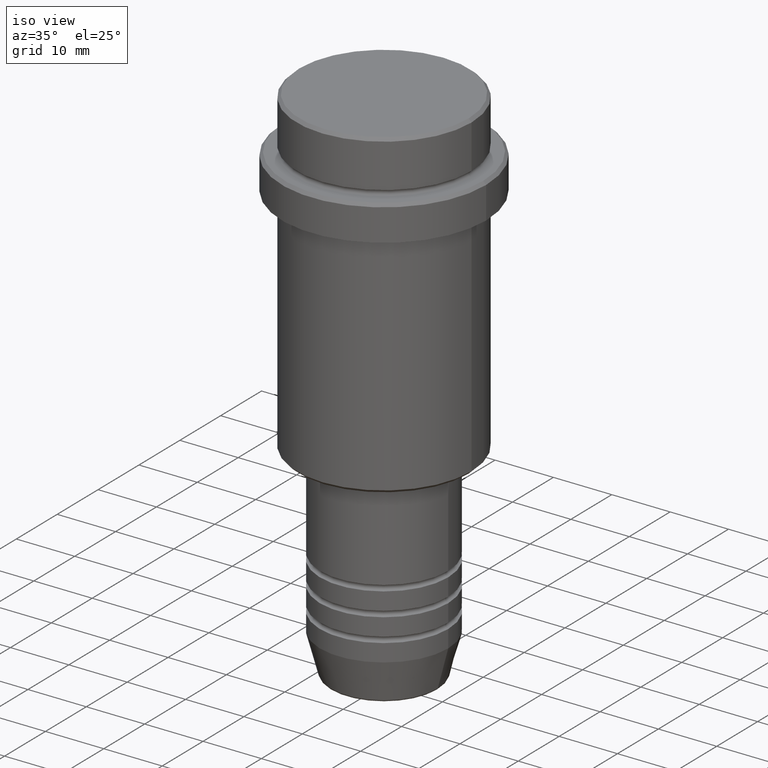
[diagram: clean part render]
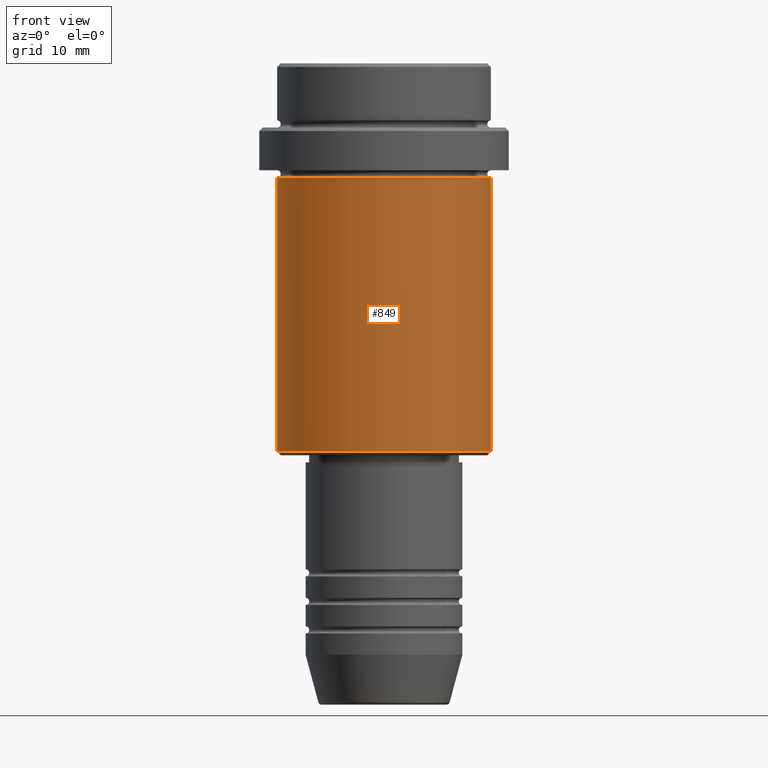
[diagram: tour spotlight — one face highlighted and labeled with its STEP entity id]
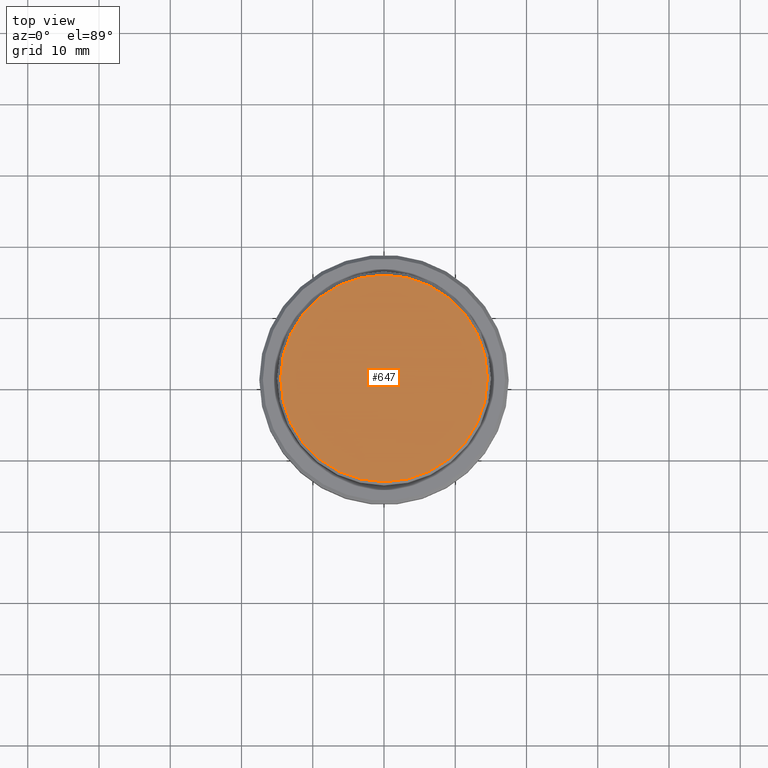
[diagram: tour spotlight — one face highlighted and labeled with its STEP entity id]
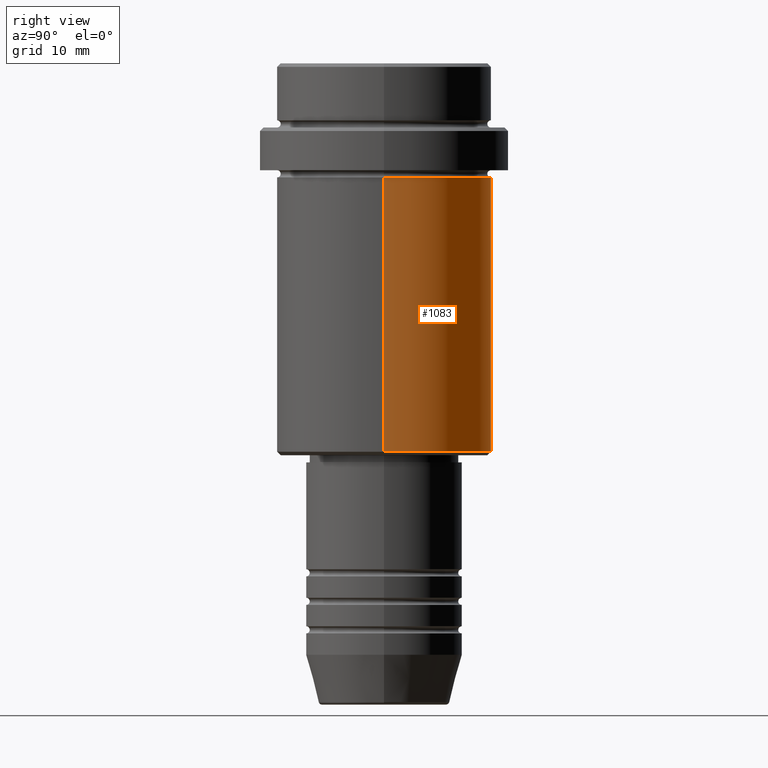
[diagram: tour spotlight — one face highlighted and labeled with its STEP entity id]
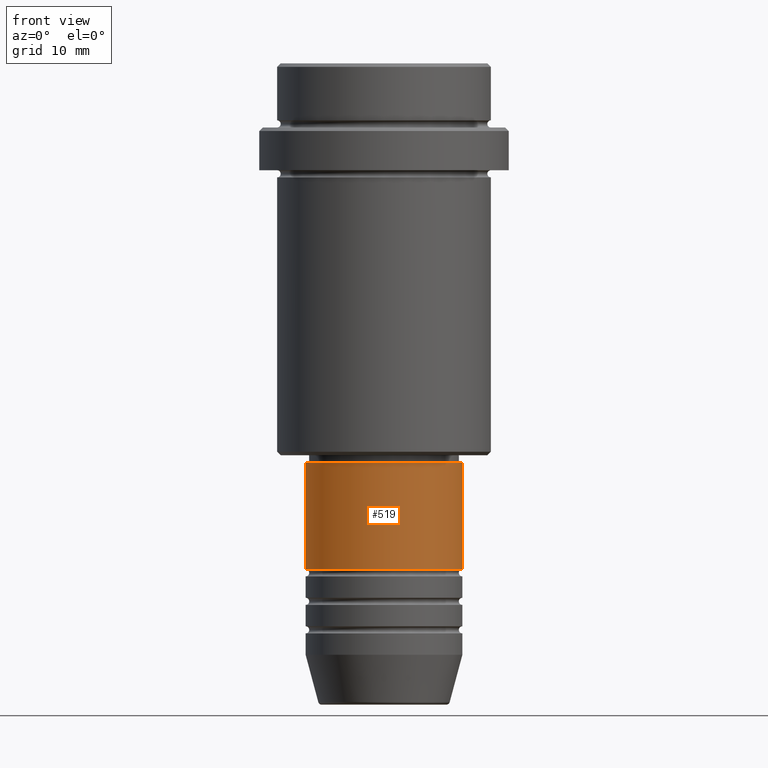
[diagram: tour spotlight — one face highlighted and labeled with its STEP entity id]
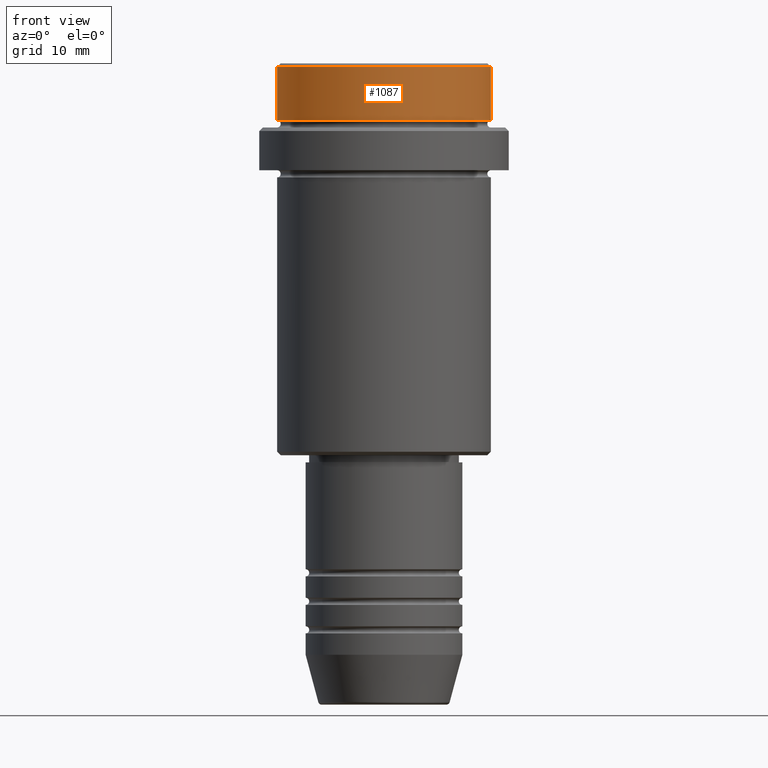
[diagram: tour spotlight — one face highlighted and labeled with its STEP entity id]
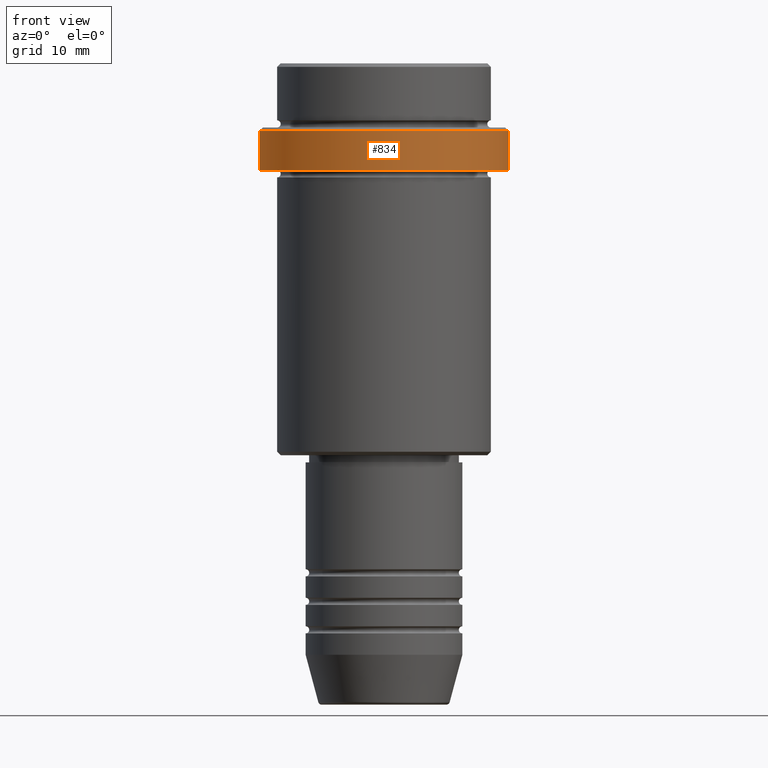
[diagram: tour spotlight — one face highlighted and labeled with its STEP entity id]
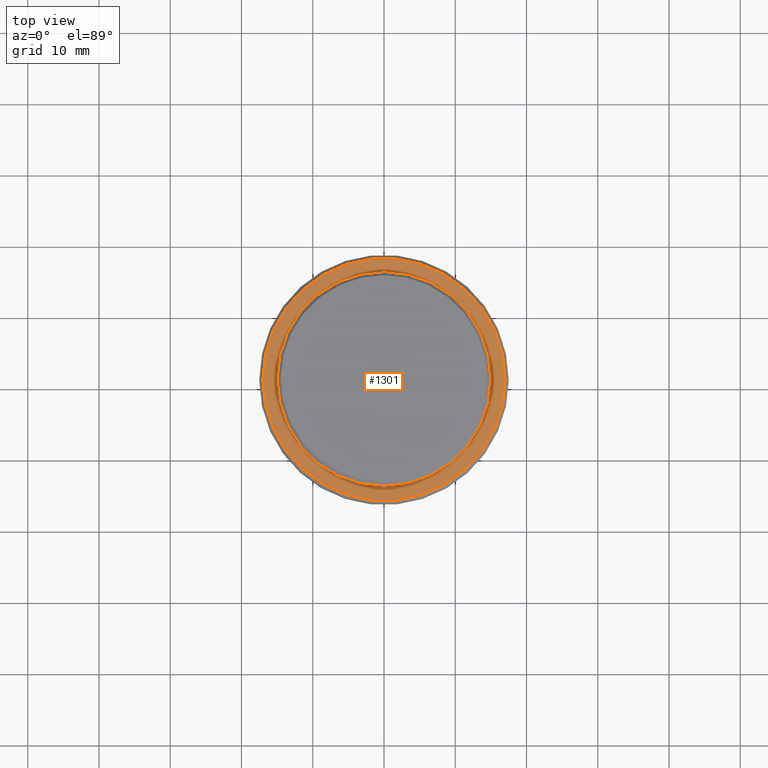
[diagram: tour spotlight — one face highlighted and labeled with its STEP entity id]
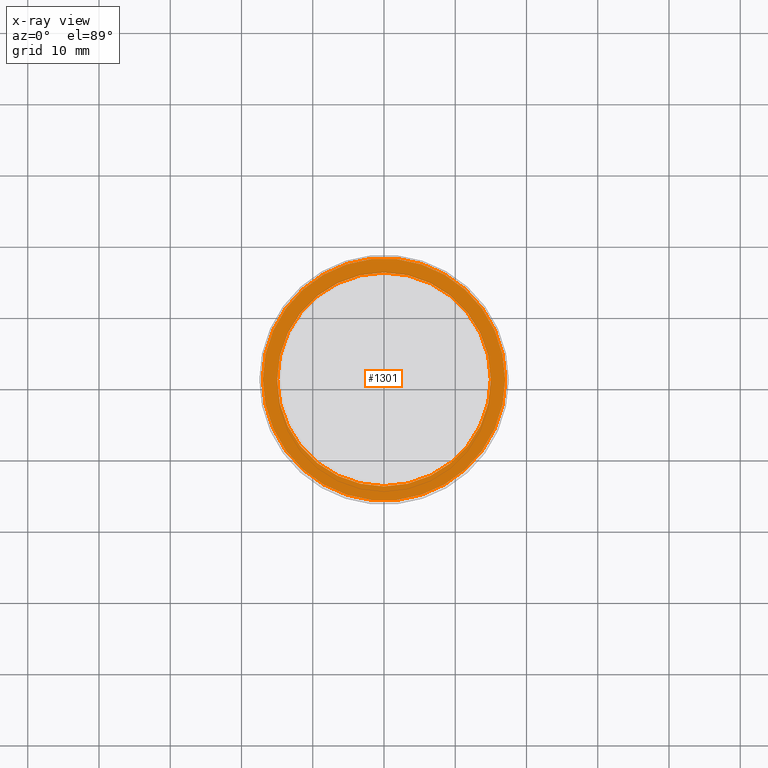
[diagram: x-ray of the same camera — body ghosted, this tour face saturated]
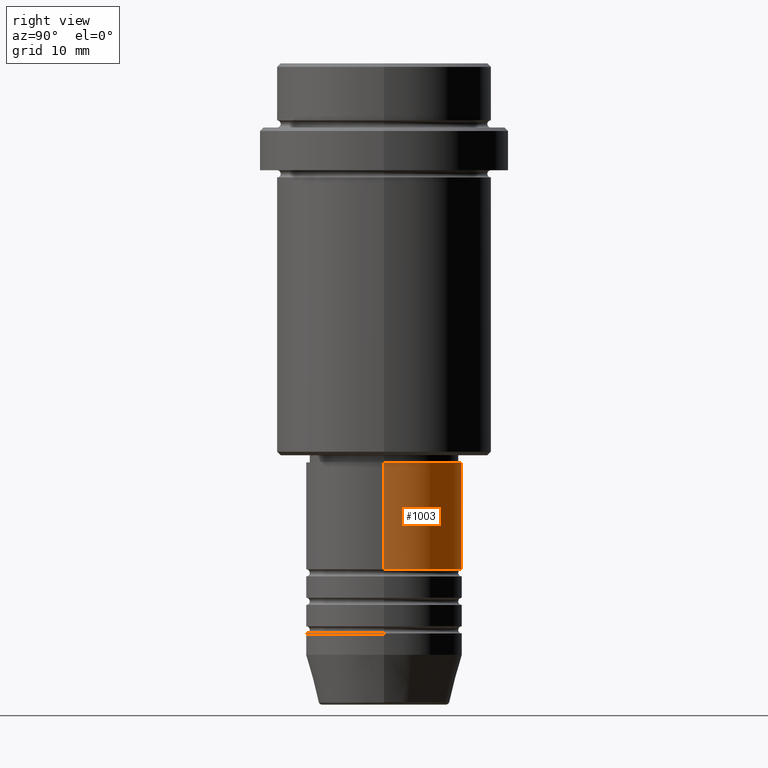
[diagram: tour spotlight — one face highlighted and labeled with its STEP entity id]
A machine part: a face-by-face anatomy tour. The part has 52 B-rep faces; the first image is the clean iso view, then the 8 largest visible faces are spotlighted one at a time (largest first), each with its STEP entity span.

Face 1 — front view, entity #849. In plain terms, the highlighted cylindrical surface (partial cylindrical patch) has radius 15 mm, axis along (-0, -0, 1).
Definition (entity closure, byte-faithful):
#38 = CARTESIAN_POINT ( 'NONE',  ( 0.000000000000000000, 0.000000000000000000, -54.49999999999998579 ) ) ;
#54 = CARTESIAN_POINT ( 'NONE',  ( -15.00000000000000000, 1.836970198721029589E-15, 0.000000000000000000 ) ) ;
#81 = EDGE_CURVE ( 'NONE', #595, #271, #911, .T. ) ;
#129 = DIRECTION ( 'NONE',  ( -1.000000000000000000, 0.000000000000000000, 0.000000000000000000 ) ) ;
#157 = EDGE_LOOP ( 'NONE', ( #703, #722, #1155, #1079 ) ) ;
#271 = VERTEX_POINT ( 'NONE', #795 ) ;
#288 = EDGE_CURVE ( 'NONE', #782, #271, #1348, .T. ) ;
#316 = AXIS2_PLACEMENT_3D ( 'NONE', #1404, #1023, #1334 ) ;
#324 = EDGE_CURVE ( 'NONE', #872, #595, #339, .T. ) ;
#339 = CIRCLE ( 'NONE', #853, 15.00000000000000000 ) ;
#464 = CARTESIAN_POINT ( 'NONE',  ( 0.000000000000000000, 0.000000000000000000, 0.000000000000000000 ) ) ;
#583 = VECTOR ( 'NONE', #1159, 1000.000000000000000 ) ;
#588 = CARTESIAN_POINT ( 'NONE',  ( 15.00000000000000000, 0.000000000000000000, 0.000000000000000000 ) ) ;
#595 = VERTEX_POINT ( 'NONE', #980 ) ;
#676 = CYLINDRICAL_SURFACE ( 'NONE', #695, 15.00000000000000000 ) ;
#695 = AXIS2_PLACEMENT_3D ( 'NONE', #464, #904, #1343 ) ;
#703 = ORIENTED_EDGE ( 'NONE', *, *, #946, .F. ) ;
#707 = CARTESIAN_POINT ( 'NONE',  ( -15.00000000000000000, 1.836970198721029589E-15, -54.49999999999998579 ) ) ;
#722 = ORIENTED_EDGE ( 'NONE', *, *, #324, .T. ) ;
#782 = VERTEX_POINT ( 'NONE', #1025 ) ;
#795 = CARTESIAN_POINT ( 'NONE',  ( 15.00000000000000178, 0.000000000000000000, -16.00000000000000000 ) ) ;
#809 = DIRECTION ( 'NONE',  ( -0.000000000000000000, -0.000000000000000000, 1.000000000000000000 ) ) ;
#814 = VECTOR ( 'NONE', #809, 1000.000000000000000 ) ;
#826 = FACE_OUTER_BOUND ( 'NONE', #157, .T. ) ;
#849 = ADVANCED_FACE ( 'NONE', ( #826 ), #676, .T. ) ;
#853 = AXIS2_PLACEMENT_3D ( 'NONE', #38, #906, #129 ) ;
#872 = VERTEX_POINT ( 'NONE', #707 ) ;
#904 = DIRECTION ( 'NONE',  ( -0.000000000000000000, -0.000000000000000000, 1.000000000000000000 ) ) ;
#906 = DIRECTION ( 'NONE',  ( -0.000000000000000000, -0.000000000000000000, 1.000000000000000000 ) ) ;
#911 = LINE ( 'NONE', #588, #814 ) ;
#946 = EDGE_CURVE ( 'NONE', #872, #782, #1058, .T. ) ;
#980 = CARTESIAN_POINT ( 'NONE',  ( 15.00000000000000000, 0.000000000000000000, -54.49999999999998579 ) ) ;
#1023 = DIRECTION ( 'NONE',  ( -0.000000000000000000, -0.000000000000000000, 1.000000000000000000 ) ) ;
#1025 = CARTESIAN_POINT ( 'NONE',  ( -15.00000000000000355, 1.836970198721029983E-15, -16.00000000000000000 ) ) ;
#1058 = LINE ( 'NONE', #54, #583 ) ;
#1079 = ORIENTED_EDGE ( 'NONE', *, *, #288, .F. ) ;
#1155 = ORIENTED_EDGE ( 'NONE', *, *, #81, .T. ) ;
#1159 = DIRECTION ( 'NONE',  ( -0.000000000000000000, -0.000000000000000000, 1.000000000000000000 ) ) ;
#1334 = DIRECTION ( 'NONE',  ( 1.000000000000000000, 0.000000000000000000, 0.000000000000000000 ) ) ;
#1343 = DIRECTION ( 'NONE',  ( 1.000000000000000000, 0.000000000000000000, 0.000000000000000000 ) ) ;
#1348 = CIRCLE ( 'NONE', #316, 15.00000000000000178 ) ;
#1404 = CARTESIAN_POINT ( 'NONE',  ( 0.000000000000000000, 0.000000000000000000, -16.00000000000000000 ) ) ;

Face 2 — top view, entity #647. In plain terms, the highlighted planar face has unit normal (0, -0, 1).
Definition (entity closure, byte-faithful):
#208 = DIRECTION ( 'NONE',  ( 1.000000000000000000, 0.000000000000000000, 0.000000000000000000 ) ) ;
#225 = VERTEX_POINT ( 'NONE', #1204 ) ;
#233 = DIRECTION ( 'NONE',  ( 1.000000000000000000, 0.000000000000000000, 0.000000000000000000 ) ) ;
#256 = EDGE_CURVE ( 'NONE', #225, #1036, #833, .T. ) ;
#334 = DIRECTION ( 'NONE',  ( -0.000000000000000000, -0.000000000000000000, 1.000000000000000000 ) ) ;
#457 = FACE_OUTER_BOUND ( 'NONE', #543, .T. ) ;
#530 = AXIS2_PLACEMENT_3D ( 'NONE', #1098, #334, #574 ) ;
#543 = EDGE_LOOP ( 'NONE', ( #674, #1091 ) ) ;
#554 = AXIS2_PLACEMENT_3D ( 'NONE', #873, #983, #208 ) ;
#574 = DIRECTION ( 'NONE',  ( 1.000000000000000000, 0.000000000000000000, 0.000000000000000000 ) ) ;
#647 = ADVANCED_FACE ( 'NONE', ( #457 ), #1325, .T. ) ;
#674 = ORIENTED_EDGE ( 'NONE', *, *, #725, .T. ) ;
#725 = EDGE_CURVE ( 'NONE', #1036, #225, #1099, .T. ) ;
#786 = CARTESIAN_POINT ( 'NONE',  ( -14.50000000000001066, 0.000000000000000000, 0.000000000000000000 ) ) ;
#833 = CIRCLE ( 'NONE', #530, 14.50000000000001066 ) ;
#873 = CARTESIAN_POINT ( 'NONE',  ( 0.000000000000000000, 0.000000000000000000, 0.000000000000000000 ) ) ;
#983 = DIRECTION ( 'NONE',  ( 0.000000000000000000, -0.000000000000000000, 1.000000000000000000 ) ) ;
#1036 = VERTEX_POINT ( 'NONE', #786 ) ;
#1091 = ORIENTED_EDGE ( 'NONE', *, *, #256, .T. ) ;
#1098 = CARTESIAN_POINT ( 'NONE',  ( 0.000000000000000000, 0.000000000000000000, 0.000000000000000000 ) ) ;
#1099 = CIRCLE ( 'NONE', #1141, 14.50000000000001066 ) ;
#1105 = CARTESIAN_POINT ( 'NONE',  ( 0.000000000000000000, 0.000000000000000000, 0.000000000000000000 ) ) ;
#1141 = AXIS2_PLACEMENT_3D ( 'NONE', #1105, #1221, #233 ) ;
#1204 = CARTESIAN_POINT ( 'NONE',  ( 14.50000000000001066, 1.806354028742346591E-15, 0.000000000000000000 ) ) ;
#1221 = DIRECTION ( 'NONE',  ( -0.000000000000000000, -0.000000000000000000, 1.000000000000000000 ) ) ;
#1325 = PLANE ( 'NONE',  #554 ) ;

Face 3 — right view, entity #1083. In plain terms, the highlighted cylindrical surface (partial cylindrical patch) has radius 15 mm, axis along (-0, -0, 1).
Definition (entity closure, byte-faithful):
#11 = CARTESIAN_POINT ( 'NONE',  ( 0.000000000000000000, 0.000000000000000000, 0.000000000000000000 ) ) ;
#54 = CARTESIAN_POINT ( 'NONE',  ( -15.00000000000000000, 1.836970198721029589E-15, 0.000000000000000000 ) ) ;
#80 = DIRECTION ( 'NONE',  ( -0.000000000000000000, -0.000000000000000000, 1.000000000000000000 ) ) ;
#81 = EDGE_CURVE ( 'NONE', #595, #271, #911, .T. ) ;
#217 = CARTESIAN_POINT ( 'NONE',  ( 0.000000000000000000, 0.000000000000000000, -16.00000000000000000 ) ) ;
#236 = EDGE_CURVE ( 'NONE', #271, #782, #926, .T. ) ;
#266 = EDGE_LOOP ( 'NONE', ( #476, #1169, #1009, #915 ) ) ;
#271 = VERTEX_POINT ( 'NONE', #795 ) ;
#476 = ORIENTED_EDGE ( 'NONE', *, *, #1397, .T. ) ;
#583 = VECTOR ( 'NONE', #1159, 1000.000000000000000 ) ;
#588 = CARTESIAN_POINT ( 'NONE',  ( 15.00000000000000000, 0.000000000000000000, 0.000000000000000000 ) ) ;
#595 = VERTEX_POINT ( 'NONE', #980 ) ;
#667 = CYLINDRICAL_SURFACE ( 'NONE', #671, 15.00000000000000000 ) ;
#671 = AXIS2_PLACEMENT_3D ( 'NONE', #11, #797, #1297 ) ;
#707 = CARTESIAN_POINT ( 'NONE',  ( -15.00000000000000000, 1.836970198721029589E-15, -54.49999999999998579 ) ) ;
#766 = CIRCLE ( 'NONE', #861, 15.00000000000000000 ) ;
#782 = VERTEX_POINT ( 'NONE', #1025 ) ;
#795 = CARTESIAN_POINT ( 'NONE',  ( 15.00000000000000178, 0.000000000000000000, -16.00000000000000000 ) ) ;
#797 = DIRECTION ( 'NONE',  ( -0.000000000000000000, -0.000000000000000000, 1.000000000000000000 ) ) ;
#809 = DIRECTION ( 'NONE',  ( -0.000000000000000000, -0.000000000000000000, 1.000000000000000000 ) ) ;
#814 = VECTOR ( 'NONE', #809, 1000.000000000000000 ) ;
#861 = AXIS2_PLACEMENT_3D ( 'NONE', #1071, #80, #1285 ) ;
#872 = VERTEX_POINT ( 'NONE', #707 ) ;
#911 = LINE ( 'NONE', #588, #814 ) ;
#915 = ORIENTED_EDGE ( 'NONE', *, *, #81, .F. ) ;
#926 = CIRCLE ( 'NONE', #947, 15.00000000000000178 ) ;
#946 = EDGE_CURVE ( 'NONE', #872, #782, #1058, .T. ) ;
#947 = AXIS2_PLACEMENT_3D ( 'NONE', #217, #1086, #1007 ) ;
#980 = CARTESIAN_POINT ( 'NONE',  ( 15.00000000000000000, 0.000000000000000000, -54.49999999999998579 ) ) ;
#1004 = FACE_OUTER_BOUND ( 'NONE', #266, .T. ) ;
#1007 = DIRECTION ( 'NONE',  ( 1.000000000000000000, 0.000000000000000000, 0.000000000000000000 ) ) ;
#1009 = ORIENTED_EDGE ( 'NONE', *, *, #236, .F. ) ;
#1025 = CARTESIAN_POINT ( 'NONE',  ( -15.00000000000000355, 1.836970198721029983E-15, -16.00000000000000000 ) ) ;
#1058 = LINE ( 'NONE', #54, #583 ) ;
#1071 = CARTESIAN_POINT ( 'NONE',  ( 0.000000000000000000, 0.000000000000000000, -54.49999999999998579 ) ) ;
#1083 = ADVANCED_FACE ( 'NONE', ( #1004 ), #667, .T. ) ;
#1086 = DIRECTION ( 'NONE',  ( -0.000000000000000000, -0.000000000000000000, 1.000000000000000000 ) ) ;
#1159 = DIRECTION ( 'NONE',  ( -0.000000000000000000, -0.000000000000000000, 1.000000000000000000 ) ) ;
#1169 = ORIENTED_EDGE ( 'NONE', *, *, #946, .T. ) ;
#1285 = DIRECTION ( 'NONE',  ( -1.000000000000000000, 0.000000000000000000, 0.000000000000000000 ) ) ;
#1297 = DIRECTION ( 'NONE',  ( 1.000000000000000000, 0.000000000000000000, 0.000000000000000000 ) ) ;
#1397 = EDGE_CURVE ( 'NONE', #595, #872, #766, .T. ) ;

Face 4 — front view, entity #519. In plain terms, the highlighted cylindrical surface (partial cylindrical patch) has radius 11 mm, axis along (-0, -0, 1).
Definition (entity closure, byte-faithful):
#48 = DIRECTION ( 'NONE',  ( 1.000000000000000000, 0.000000000000000000, 0.000000000000000000 ) ) ;
#261 = LINE ( 'NONE', #704, #650 ) ;
#313 = ORIENTED_EDGE ( 'NONE', *, *, #607, .F. ) ;
#319 = DIRECTION ( 'NONE',  ( -0.000000000000000000, -0.000000000000000000, 1.000000000000000000 ) ) ;
#341 = AXIS2_PLACEMENT_3D ( 'NONE', #976, #319, #1188 ) ;
#367 = AXIS2_PLACEMENT_3D ( 'NONE', #408, #1384, #48 ) ;
#375 = VERTEX_POINT ( 'NONE', #1229 ) ;
#404 = DIRECTION ( 'NONE',  ( -0.000000000000000000, -0.000000000000000000, 1.000000000000000000 ) ) ;
#408 = CARTESIAN_POINT ( 'NONE',  ( 0.000000000000000000, 0.000000000000000000, -70.99999999999990052 ) ) ;
#413 = CIRCLE ( 'NONE', #341, 10.99999999999999822 ) ;
#433 = EDGE_CURVE ( 'NONE', #375, #560, #261, .T. ) ;
#448 = ORIENTED_EDGE ( 'NONE', *, *, #1319, .F. ) ;
#519 = ADVANCED_FACE ( 'NONE', ( #1393 ), #1381, .T. ) ;
#560 = VERTEX_POINT ( 'NONE', #629 ) ;
#599 = DIRECTION ( 'NONE',  ( -0.000000000000000000, -0.000000000000000000, 1.000000000000000000 ) ) ;
#607 = EDGE_CURVE ( 'NONE', #1178, #560, #413, .T. ) ;
#629 = CARTESIAN_POINT ( 'NONE',  ( 10.99999999999999822, 0.000000000000000000, -56.00000000000000000 ) ) ;
#630 = AXIS2_PLACEMENT_3D ( 'NONE', #1298, #404, #750 ) ;
#650 = VECTOR ( 'NONE', #599, 1000.000000000000000 ) ;
#698 = VECTOR ( 'NONE', #752, 1000.000000000000000 ) ;
#701 = CARTESIAN_POINT ( 'NONE',  ( -10.99999999999999822, 1.347111479062088207E-15, -56.00000000000000000 ) ) ;
#704 = CARTESIAN_POINT ( 'NONE',  ( 11.00000000000000000, 0.000000000000000000, 0.000000000000000000 ) ) ;
#730 = ORIENTED_EDGE ( 'NONE', *, *, #433, .T. ) ;
#733 = EDGE_LOOP ( 'NONE', ( #448, #1072, #730, #313 ) ) ;
#750 = DIRECTION ( 'NONE',  ( 1.000000000000000000, 0.000000000000000000, 0.000000000000000000 ) ) ;
#752 = DIRECTION ( 'NONE',  ( -0.000000000000000000, -0.000000000000000000, 1.000000000000000000 ) ) ;
#844 = CARTESIAN_POINT ( 'NONE',  ( -11.00000000000000000, 1.347111479062088405E-15, 0.000000000000000000 ) ) ;
#913 = EDGE_CURVE ( 'NONE', #1032, #375, #1309, .T. ) ;
#970 = LINE ( 'NONE', #844, #698 ) ;
#976 = CARTESIAN_POINT ( 'NONE',  ( 0.000000000000000000, 0.000000000000000000, -56.00000000000000000 ) ) ;
#1032 = VERTEX_POINT ( 'NONE', #1231 ) ;
#1072 = ORIENTED_EDGE ( 'NONE', *, *, #913, .T. ) ;
#1178 = VERTEX_POINT ( 'NONE', #701 ) ;
#1188 = DIRECTION ( 'NONE',  ( 1.000000000000000000, 0.000000000000000000, 0.000000000000000000 ) ) ;
#1229 = CARTESIAN_POINT ( 'NONE',  ( 11.00000000000000000, 0.000000000000000000, -70.99999999999990052 ) ) ;
#1231 = CARTESIAN_POINT ( 'NONE',  ( -11.00000000000000000, 1.347111479062088405E-15, -70.99999999999990052 ) ) ;
#1298 = CARTESIAN_POINT ( 'NONE',  ( 0.000000000000000000, 0.000000000000000000, 0.000000000000000000 ) ) ;
#1309 = CIRCLE ( 'NONE', #367, 11.00000000000000000 ) ;
#1319 = EDGE_CURVE ( 'NONE', #1032, #1178, #970, .T. ) ;
#1381 = CYLINDRICAL_SURFACE ( 'NONE', #630, 11.00000000000000000 ) ;
#1384 = DIRECTION ( 'NONE',  ( -0.000000000000000000, -0.000000000000000000, 1.000000000000000000 ) ) ;
#1393 = FACE_OUTER_BOUND ( 'NONE', #733, .T. ) ;

Face 5 — front view, entity #1087. In plain terms, the highlighted cylindrical surface (partial cylindrical patch) has radius 15 mm, axis along (-0, -0, 1).
Definition (entity closure, byte-faithful):
#6 = EDGE_LOOP ( 'NONE', ( #491, #938, #9, #1345 ) ) ;
#9 = ORIENTED_EDGE ( 'NONE', *, *, #874, .T. ) ;
#33 = EDGE_CURVE ( 'NONE', #537, #933, #603, .T. ) ;
#36 = DIRECTION ( 'NONE',  ( -0.000000000000000000, -0.000000000000000000, 1.000000000000000000 ) ) ;
#43 = CARTESIAN_POINT ( 'NONE',  ( 15.00000000000000000, 0.000000000000000000, -0.4999999999999831246 ) ) ;
#47 = VERTEX_POINT ( 'NONE', #1401 ) ;
#140 = EDGE_CURVE ( 'NONE', #537, #47, #979, .T. ) ;
#141 = CARTESIAN_POINT ( 'NONE',  ( 15.00000000000000000, 0.000000000000000000, 0.000000000000000000 ) ) ;
#272 = VECTOR ( 'NONE', #659, 1000.000000000000000 ) ;
#299 = CARTESIAN_POINT ( 'NONE',  ( 15.00000000000000000, 0.000000000000000000, -7.999999999999998224 ) ) ;
#455 = DIRECTION ( 'NONE',  ( 1.000000000000000000, 0.000000000000000000, 0.000000000000000000 ) ) ;
#459 = CYLINDRICAL_SURFACE ( 'NONE', #1414, 15.00000000000000000 ) ;
#481 = DIRECTION ( 'NONE',  ( -0.000000000000000000, -0.000000000000000000, 1.000000000000000000 ) ) ;
#487 = CARTESIAN_POINT ( 'NONE',  ( 0.000000000000000000, 0.000000000000000000, -7.999999999999998224 ) ) ;
#491 = ORIENTED_EDGE ( 'NONE', *, *, #140, .F. ) ;
#526 = DIRECTION ( 'NONE',  ( 0.000000000000000000, 0.000000000000000000, -1.000000000000000000 ) ) ;
#537 = VERTEX_POINT ( 'NONE', #1367 ) ;
#587 = CARTESIAN_POINT ( 'NONE',  ( 0.000000000000000000, 0.000000000000000000, 0.000000000000000000 ) ) ;
#603 = CIRCLE ( 'NONE', #1208, 15.00000000000000000 ) ;
#659 = DIRECTION ( 'NONE',  ( -0.000000000000000000, -0.000000000000000000, 1.000000000000000000 ) ) ;
#740 = CARTESIAN_POINT ( 'NONE',  ( 0.000000000000000000, 0.000000000000000000, -0.4999999999999831246 ) ) ;
#806 = VERTEX_POINT ( 'NONE', #43 ) ;
#817 = LINE ( 'NONE', #141, #1142 ) ;
#856 = DIRECTION ( 'NONE',  ( 1.000000000000000000, 0.000000000000000000, 0.000000000000000000 ) ) ;
#874 = EDGE_CURVE ( 'NONE', #933, #806, #817, .T. ) ;
#931 = DIRECTION ( 'NONE',  ( 1.000000000000000000, 0.000000000000000000, 0.000000000000000000 ) ) ;
#933 = VERTEX_POINT ( 'NONE', #299 ) ;
#938 = ORIENTED_EDGE ( 'NONE', *, *, #33, .T. ) ;
#974 = FACE_OUTER_BOUND ( 'NONE', #6, .T. ) ;
#979 = LINE ( 'NONE', #992, #272 ) ;
#992 = CARTESIAN_POINT ( 'NONE',  ( -15.00000000000000000, 1.836970198721029589E-15, 0.000000000000000000 ) ) ;
#1087 = ADVANCED_FACE ( 'NONE', ( #974 ), #459, .T. ) ;
#1142 = VECTOR ( 'NONE', #36, 1000.000000000000000 ) ;
#1148 = CIRCLE ( 'NONE', #1273, 15.00000000000000000 ) ;
#1208 = AXIS2_PLACEMENT_3D ( 'NONE', #487, #481, #931 ) ;
#1226 = DIRECTION ( 'NONE',  ( -0.000000000000000000, -0.000000000000000000, 1.000000000000000000 ) ) ;
#1273 = AXIS2_PLACEMENT_3D ( 'NONE', #740, #526, #856 ) ;
#1345 = ORIENTED_EDGE ( 'NONE', *, *, #1409, .T. ) ;
#1367 = CARTESIAN_POINT ( 'NONE',  ( -15.00000000000000000, 1.836970198721029589E-15, -7.999999999999998224 ) ) ;
#1401 = CARTESIAN_POINT ( 'NONE',  ( -15.00000000000000000, 1.836970198721029589E-15, -0.4999999999999831246 ) ) ;
#1409 = EDGE_CURVE ( 'NONE', #806, #47, #1148, .T. ) ;
#1414 = AXIS2_PLACEMENT_3D ( 'NONE', #587, #1226, #455 ) ;

Face 6 — front view, entity #834. In plain terms, the highlighted cylindrical surface (partial cylindrical patch) has radius 17.5 mm, axis along (-0, -0, 1).
Definition (entity closure, byte-faithful):
#4 = ORIENTED_EDGE ( 'NONE', *, *, #126, .T. ) ;
#14 = CYLINDRICAL_SURFACE ( 'NONE', #275, 17.50000000000000000 ) ;
#27 = ORIENTED_EDGE ( 'NONE', *, *, #843, .T. ) ;
#63 = LINE ( 'NONE', #518, #441 ) ;
#98 = ORIENTED_EDGE ( 'NONE', *, *, #978, .T. ) ;
#126 = EDGE_CURVE ( 'NONE', #422, #1179, #1080, .T. ) ;
#131 = AXIS2_PLACEMENT_3D ( 'NONE', #1252, #147, #1336 ) ;
#147 = DIRECTION ( 'NONE',  ( -0.000000000000000000, -0.000000000000000000, 1.000000000000000000 ) ) ;
#193 = CARTESIAN_POINT ( 'NONE',  ( -17.50000000000000000, 2.143131898507868248E-15, 0.000000000000000000 ) ) ;
#240 = FACE_OUTER_BOUND ( 'NONE', #1277, .T. ) ;
#275 = AXIS2_PLACEMENT_3D ( 'NONE', #480, #497, #382 ) ;
#306 = CARTESIAN_POINT ( 'NONE',  ( -17.50000000000000000, 2.143131898507868248E-15, -15.00000000000000000 ) ) ;
#382 = DIRECTION ( 'NONE',  ( 1.000000000000000000, 0.000000000000000000, 0.000000000000000000 ) ) ;
#402 = ORIENTED_EDGE ( 'NONE', *, *, #525, .F. ) ;
#422 = VERTEX_POINT ( 'NONE', #1341 ) ;
#441 = VECTOR ( 'NONE', #744, 1000.000000000000000 ) ;
#475 = VERTEX_POINT ( 'NONE', #306 ) ;
#480 = CARTESIAN_POINT ( 'NONE',  ( 0.000000000000000000, 0.000000000000000000, 0.000000000000000000 ) ) ;
#497 = DIRECTION ( 'NONE',  ( -0.000000000000000000, -0.000000000000000000, 1.000000000000000000 ) ) ;
#518 = CARTESIAN_POINT ( 'NONE',  ( 17.50000000000000000, 0.000000000000000000, 0.000000000000000000 ) ) ;
#525 = EDGE_CURVE ( 'NONE', #475, #1179, #1181, .T. ) ;
#553 = CARTESIAN_POINT ( 'NONE',  ( 0.000000000000000000, 0.000000000000000000, -9.499999999999971578 ) ) ;
#594 = CARTESIAN_POINT ( 'NONE',  ( -17.50000000000000000, 2.143131898507868248E-15, -9.499999999999971578 ) ) ;
#613 = DIRECTION ( 'NONE',  ( 0.000000000000000000, 0.000000000000000000, -1.000000000000000000 ) ) ;
#646 = DIRECTION ( 'NONE',  ( -0.000000000000000000, -0.000000000000000000, 1.000000000000000000 ) ) ;
#744 = DIRECTION ( 'NONE',  ( -0.000000000000000000, -0.000000000000000000, 1.000000000000000000 ) ) ;
#834 = ADVANCED_FACE ( 'NONE', ( #240 ), #14, .T. ) ;
#843 = EDGE_CURVE ( 'NONE', #475, #1200, #1291, .T. ) ;
#887 = DIRECTION ( 'NONE',  ( 1.000000000000000000, 0.000000000000000000, 0.000000000000000000 ) ) ;
#952 = VECTOR ( 'NONE', #646, 1000.000000000000000 ) ;
#978 = EDGE_CURVE ( 'NONE', #1200, #422, #63, .T. ) ;
#1030 = CARTESIAN_POINT ( 'NONE',  ( 17.50000000000000000, 0.000000000000000000, -15.00000000000000000 ) ) ;
#1031 = AXIS2_PLACEMENT_3D ( 'NONE', #553, #613, #887 ) ;
#1080 = CIRCLE ( 'NONE', #1031, 17.50000000000000000 ) ;
#1179 = VERTEX_POINT ( 'NONE', #594 ) ;
#1181 = LINE ( 'NONE', #193, #952 ) ;
#1200 = VERTEX_POINT ( 'NONE', #1030 ) ;
#1252 = CARTESIAN_POINT ( 'NONE',  ( 0.000000000000000000, 0.000000000000000000, -15.00000000000000000 ) ) ;
#1277 = EDGE_LOOP ( 'NONE', ( #402, #27, #98, #4 ) ) ;
#1291 = CIRCLE ( 'NONE', #131, 17.50000000000000000 ) ;
#1336 = DIRECTION ( 'NONE',  ( 1.000000000000000000, 0.000000000000000000, 0.000000000000000000 ) ) ;
#1341 = CARTESIAN_POINT ( 'NONE',  ( 17.50000000000000000, 0.000000000000000000, -9.499999999999971578 ) ) ;

Face 7 — top view, entity #1301. An x-ray twin of the same camera follows (body ghosted, this face saturated) — the face is partly hidden behind the body. In plain terms, the highlighted planar face has unit normal (0, -0, 1).
Definition (entity closure, byte-faithful):
#42 = VERTEX_POINT ( 'NONE', #145 ) ;
#53 = ORIENTED_EDGE ( 'NONE', *, *, #1130, .T. ) ;
#73 = VERTEX_POINT ( 'NONE', #798 ) ;
#92 = PLANE ( 'NONE',  #110 ) ;
#97 = EDGE_LOOP ( 'NONE', ( #699, #53 ) ) ;
#106 = CIRCLE ( 'NONE', #1392, 17.00000000000002842 ) ;
#110 = AXIS2_PLACEMENT_3D ( 'NONE', #315, #1299, #1076 ) ;
#145 = CARTESIAN_POINT ( 'NONE',  ( -17.00000000000002842, 0.000000000000000000, -9.000000000000000000 ) ) ;
#177 = CIRCLE ( 'NONE', #967, 14.99999999999999289 ) ;
#205 = EDGE_CURVE ( 'NONE', #568, #634, #177, .T. ) ;
#210 = DIRECTION ( 'NONE',  ( 1.000000000000000000, 0.000000000000000000, 0.000000000000000000 ) ) ;
#253 = AXIS2_PLACEMENT_3D ( 'NONE', #485, #929, #1043 ) ;
#315 = CARTESIAN_POINT ( 'NONE',  ( 0.000000000000000000, 14.49999999999999467, -9.000000000000000000 ) ) ;
#374 = CARTESIAN_POINT ( 'NONE',  ( 0.000000000000000000, 0.000000000000000000, -9.000000000000000000 ) ) ;
#462 = EDGE_LOOP ( 'NONE', ( #1097, #754 ) ) ;
#485 = CARTESIAN_POINT ( 'NONE',  ( 0.000000000000000000, 0.000000000000000000, -9.000000000000000000 ) ) ;
#568 = VERTEX_POINT ( 'NONE', #642 ) ;
#631 = CIRCLE ( 'NONE', #253, 14.99999999999999289 ) ;
#634 = VERTEX_POINT ( 'NONE', #1403 ) ;
#642 = CARTESIAN_POINT ( 'NONE',  ( 14.99999999999999289, 0.000000000000000000, -9.000000000000000000 ) ) ;
#683 = DIRECTION ( 'NONE',  ( 1.000000000000000000, 0.000000000000000000, 0.000000000000000000 ) ) ;
#699 = ORIENTED_EDGE ( 'NONE', *, *, #751, .T. ) ;
#720 = AXIS2_PLACEMENT_3D ( 'NONE', #898, #999, #683 ) ;
#751 = EDGE_CURVE ( 'NONE', #42, #73, #106, .T. ) ;
#754 = ORIENTED_EDGE ( 'NONE', *, *, #886, .T. ) ;
#775 = DIRECTION ( 'NONE',  ( 0.000000000000000000, 0.000000000000000000, -1.000000000000000000 ) ) ;
#798 = CARTESIAN_POINT ( 'NONE',  ( 17.00000000000002842, 2.112515728529186039E-15, -9.000000000000000000 ) ) ;
#848 = FACE_OUTER_BOUND ( 'NONE', #97, .T. ) ;
#886 = EDGE_CURVE ( 'NONE', #634, #568, #631, .T. ) ;
#898 = CARTESIAN_POINT ( 'NONE',  ( 0.000000000000000000, 0.000000000000000000, -9.000000000000000000 ) ) ;
#929 = DIRECTION ( 'NONE',  ( 0.000000000000000000, 0.000000000000000000, -1.000000000000000000 ) ) ;
#967 = AXIS2_PLACEMENT_3D ( 'NONE', #1108, #775, #210 ) ;
#999 = DIRECTION ( 'NONE',  ( -0.000000000000000000, -0.000000000000000000, 1.000000000000000000 ) ) ;
#1043 = DIRECTION ( 'NONE',  ( 1.000000000000000000, 0.000000000000000000, 0.000000000000000000 ) ) ;
#1076 = DIRECTION ( 'NONE',  ( 1.000000000000000000, 0.000000000000000000, 0.000000000000000000 ) ) ;
#1097 = ORIENTED_EDGE ( 'NONE', *, *, #205, .T. ) ;
#1108 = CARTESIAN_POINT ( 'NONE',  ( 0.000000000000000000, 0.000000000000000000, -9.000000000000000000 ) ) ;
#1130 = EDGE_CURVE ( 'NONE', #73, #42, #1313, .T. ) ;
#1227 = DIRECTION ( 'NONE',  ( -0.000000000000000000, -0.000000000000000000, 1.000000000000000000 ) ) ;
#1294 = FACE_BOUND ( 'NONE', #462, .T. ) ;
#1299 = DIRECTION ( 'NONE',  ( 0.000000000000000000, -0.000000000000000000, 1.000000000000000000 ) ) ;
#1301 = ADVANCED_FACE ( 'NONE', ( #848, #1294 ), #92, .T. ) ;
#1313 = CIRCLE ( 'NONE', #720, 17.00000000000002842 ) ;
#1333 = DIRECTION ( 'NONE',  ( 1.000000000000000000, 0.000000000000000000, 0.000000000000000000 ) ) ;
#1392 = AXIS2_PLACEMENT_3D ( 'NONE', #374, #1227, #1333 ) ;
#1403 = CARTESIAN_POINT ( 'NONE',  ( -14.99999999999999289, 1.836970198721028800E-15, -9.000000000000000000 ) ) ;

Face 8 — right view, entity #1003. In plain terms, the highlighted cylindrical surface (partial cylindrical patch) has radius 11 mm, axis along (-0, -0, 1).
Definition (entity closure, byte-faithful):
#226 = EDGE_LOOP ( 'NONE', ( #1253, #1017, #368, #602 ) ) ;
#261 = LINE ( 'NONE', #704, #650 ) ;
#309 = CARTESIAN_POINT ( 'NONE',  ( 0.000000000000000000, 0.000000000000000000, -56.00000000000000000 ) ) ;
#318 = AXIS2_PLACEMENT_3D ( 'NONE', #389, #640, #528 ) ;
#368 = ORIENTED_EDGE ( 'NONE', *, *, #1150, .F. ) ;
#375 = VERTEX_POINT ( 'NONE', #1229 ) ;
#389 = CARTESIAN_POINT ( 'NONE',  ( 0.000000000000000000, 0.000000000000000000, 0.000000000000000000 ) ) ;
#403 = FACE_OUTER_BOUND ( 'NONE', #226, .T. ) ;
#433 = EDGE_CURVE ( 'NONE', #375, #560, #261, .T. ) ;
#494 = CIRCLE ( 'NONE', #765, 10.99999999999999822 ) ;
#528 = DIRECTION ( 'NONE',  ( 1.000000000000000000, 0.000000000000000000, 0.000000000000000000 ) ) ;
#560 = VERTEX_POINT ( 'NONE', #629 ) ;
#599 = DIRECTION ( 'NONE',  ( -0.000000000000000000, -0.000000000000000000, 1.000000000000000000 ) ) ;
#602 = ORIENTED_EDGE ( 'NONE', *, *, #433, .F. ) ;
#612 = DIRECTION ( 'NONE',  ( -0.000000000000000000, -0.000000000000000000, 1.000000000000000000 ) ) ;
#629 = CARTESIAN_POINT ( 'NONE',  ( 10.99999999999999822, 0.000000000000000000, -56.00000000000000000 ) ) ;
#640 = DIRECTION ( 'NONE',  ( -0.000000000000000000, -0.000000000000000000, 1.000000000000000000 ) ) ;
#650 = VECTOR ( 'NONE', #599, 1000.000000000000000 ) ;
#698 = VECTOR ( 'NONE', #752, 1000.000000000000000 ) ;
#701 = CARTESIAN_POINT ( 'NONE',  ( -10.99999999999999822, 1.347111479062088207E-15, -56.00000000000000000 ) ) ;
#704 = CARTESIAN_POINT ( 'NONE',  ( 11.00000000000000000, 0.000000000000000000, 0.000000000000000000 ) ) ;
#752 = DIRECTION ( 'NONE',  ( -0.000000000000000000, -0.000000000000000000, 1.000000000000000000 ) ) ;
#755 = DIRECTION ( 'NONE',  ( 1.000000000000000000, 0.000000000000000000, 0.000000000000000000 ) ) ;
#765 = AXIS2_PLACEMENT_3D ( 'NONE', #309, #1187, #755 ) ;
#844 = CARTESIAN_POINT ( 'NONE',  ( -11.00000000000000000, 1.347111479062088405E-15, 0.000000000000000000 ) ) ;
#970 = LINE ( 'NONE', #844, #698 ) ;
#1003 = ADVANCED_FACE ( 'NONE', ( #403 ), #1073, .T. ) ;
#1017 = ORIENTED_EDGE ( 'NONE', *, *, #1319, .T. ) ;
#1032 = VERTEX_POINT ( 'NONE', #1231 ) ;
#1041 = DIRECTION ( 'NONE',  ( 1.000000000000000000, 0.000000000000000000, 0.000000000000000000 ) ) ;
#1073 = CYLINDRICAL_SURFACE ( 'NONE', #318, 11.00000000000000000 ) ;
#1084 = AXIS2_PLACEMENT_3D ( 'NONE', #1239, #612, #1041 ) ;
#1150 = EDGE_CURVE ( 'NONE', #560, #1178, #494, .T. ) ;
#1172 = CIRCLE ( 'NONE', #1084, 11.00000000000000000 ) ;
#1178 = VERTEX_POINT ( 'NONE', #701 ) ;
#1187 = DIRECTION ( 'NONE',  ( -0.000000000000000000, -0.000000000000000000, 1.000000000000000000 ) ) ;
#1229 = CARTESIAN_POINT ( 'NONE',  ( 11.00000000000000000, 0.000000000000000000, -70.99999999999990052 ) ) ;
#1231 = CARTESIAN_POINT ( 'NONE',  ( -11.00000000000000000, 1.347111479062088405E-15, -70.99999999999990052 ) ) ;
#1239 = CARTESIAN_POINT ( 'NONE',  ( 0.000000000000000000, 0.000000000000000000, -70.99999999999990052 ) ) ;
#1253 = ORIENTED_EDGE ( 'NONE', *, *, #1271, .T. ) ;
#1271 = EDGE_CURVE ( 'NONE', #375, #1032, #1172, .T. ) ;
#1319 = EDGE_CURVE ( 'NONE', #1032, #1178, #970, .T. ) ;